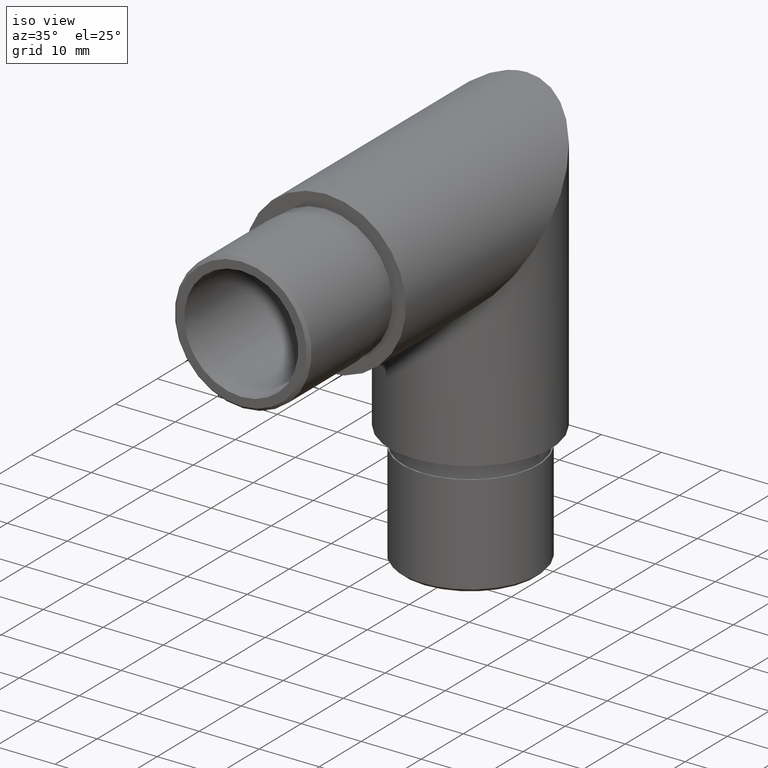
[diagram: clean part render]
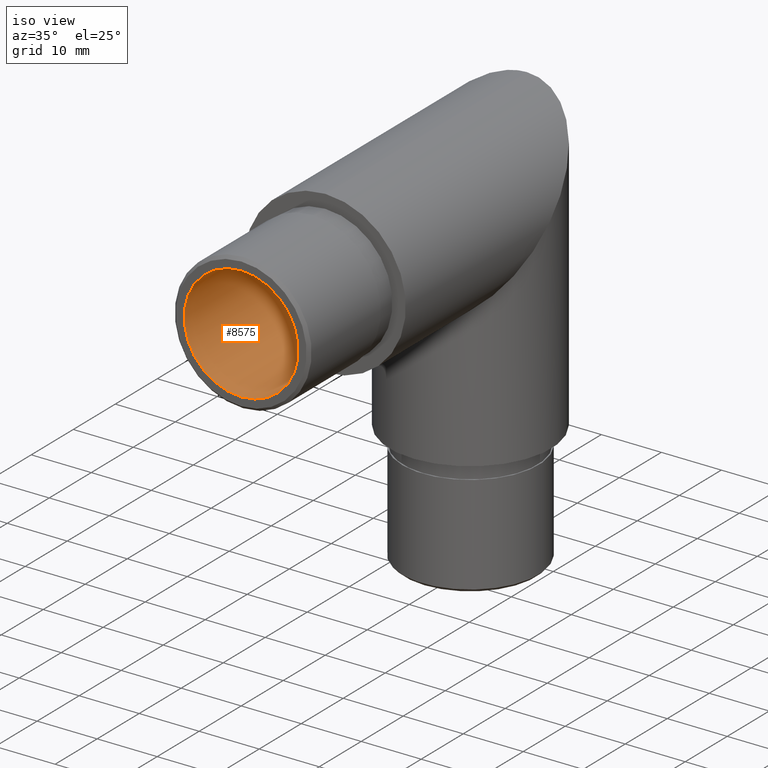
[diagram: same view with one face highlighted and labeled with its STEP entity id]
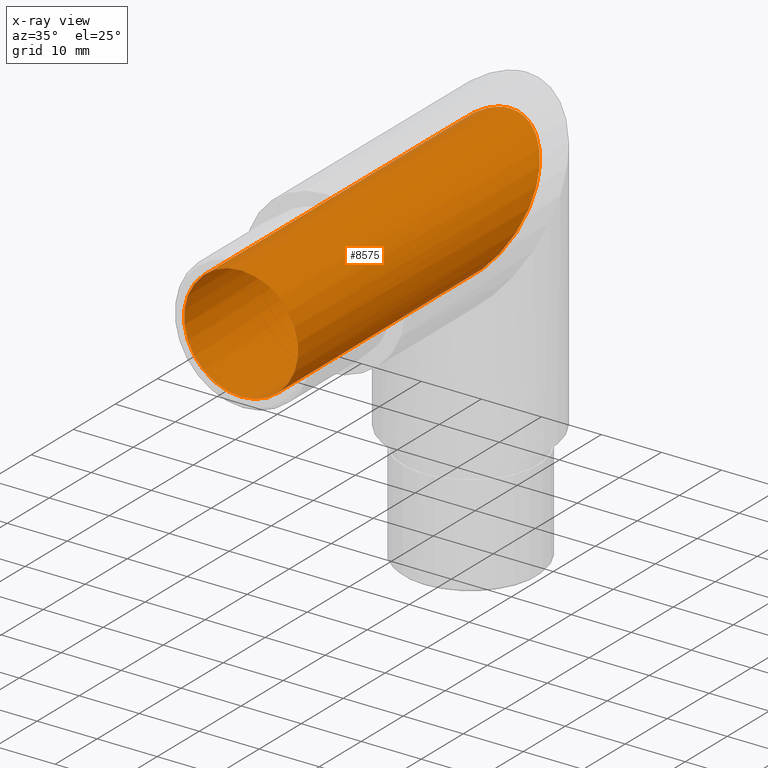
[diagram: x-ray of the same camera — body ghosted, the highlighted face saturated]
A machine part, iso view. The second image highlights one B-rep face of the part: STEP entity #8575.
The next image is the same camera in x-ray: the body ghosted, the highlighted face saturated — about 1% of this face is hidden behind the body in this view.
In plain terms, the highlighted cylindrical surface (bore or boss wall) has radius 9.5 mm, axis along (-0, -1, -0).
Its self-contained STEP definition (entity closure, byte-faithful):
#150 = CIRCLE ( 'NONE', #7081, 9.500000000000001800 ) ;
#356 = ORIENTED_EDGE ( 'NONE', *, *, #2575, .T. ) ;
#779 = EDGE_LOOP ( 'NONE', ( #356 ) ) ;
#1192 = CARTESIAN_POINT ( 'NONE',  ( 0.0000000000000000000, 72.59234482783624300, 0.0000000000000000000 ) ) ;
#2121 = DIRECTION ( 'NONE',  ( 0.0000000000000000000, 0.0000000000000000000, -1.000000000000000000 ) ) ;
#2449 = CYLINDRICAL_SURFACE ( 'NONE', #8530, 9.500000000000000000 ) ;
#2575 = EDGE_CURVE ( 'NONE', #8780, #8780, #150, .T. ) ;
#2926 = DIRECTION ( 'NONE',  ( -0.0000000000000000000, -1.000000000000000000, -0.0000000000000000000 ) ) ;
#2972 = EDGE_LOOP ( 'NONE', ( #10189 ) ) ;
#3138 = FACE_OUTER_BOUND ( 'NONE', #779, .T. ) ;
#3331 = CARTESIAN_POINT ( 'NONE',  ( -18.99999999999999300, 25.04999999999996500, -9.500000000000000000 ) ) ;
#4205 = CARTESIAN_POINT ( 'NONE',  ( -1.163414459189985500E-015, 44.05000000000003300, 9.500000000000000000 ) ) ;
#4385 =( BOUNDED_CURVE ( )  B_SPLINE_CURVE ( 3, ( #5895, #3331, #9236, #4205, #9164, #9313, #5062 ),
 .UNSPECIFIED., .T., .T. ) 
 B_SPLINE_CURVE_WITH_KNOTS ( ( 4, 3, 4 ),
 ( 0.0000000000000000000, 3.141592653589793100, 6.283185307179586200 ),
 .UNSPECIFIED. ) 
 CURVE ( )  GEOMETRIC_REPRESENTATION_ITEM ( )  RATIONAL_B_SPLINE_CURVE ( ( 1.000000000000000000, 0.3333333333333333700, 0.3333333333333333700, 1.000000000000000000, 0.3333333333333333700, 0.3333333333333333700, 1.000000000000000000 ) ) 
 REPRESENTATION_ITEM ( '' )  );
#5062 = CARTESIAN_POINT ( 'NONE',  ( 0.0000000000000000000, 25.04999999999996200, -9.500000000000000000 ) ) ;
#5895 = CARTESIAN_POINT ( 'NONE',  ( 0.0000000000000000000, 25.04999999999996200, -9.500000000000000000 ) ) ;
#6717 = FACE_OUTER_BOUND ( 'NONE', #2972, .T. ) ;
#7081 = AXIS2_PLACEMENT_3D ( 'NONE', #8186, #9034, #9852 ) ;
#7221 = CARTESIAN_POINT ( 'NONE',  ( 0.0000000000000000000, 25.04999999999996200, -9.500000000000000000 ) ) ;
#8136 = EDGE_CURVE ( 'NONE', #8522, #8522, #4385, .T. ) ;
#8186 = CARTESIAN_POINT ( 'NONE',  ( 0.0000000000000000000, -20.00000000000000000, 0.0000000000000000000 ) ) ;
#8522 = VERTEX_POINT ( 'NONE', #7221 ) ;
#8530 = AXIS2_PLACEMENT_3D ( 'NONE', #1192, #2926, #2121 ) ;
#8575 = ADVANCED_FACE ( 'NONE', ( #6717, #3138 ), #2449, .F. ) ;
#8780 = VERTEX_POINT ( 'NONE', #10578 ) ;
#9034 = DIRECTION ( 'NONE',  ( 0.0000000000000000000, -1.000000000000000000, 0.0000000000000000000 ) ) ;
#9164 = CARTESIAN_POINT ( 'NONE',  ( 18.99999999999999300, 44.05000000000003300, 9.500000000000001800 ) ) ;
#9236 = CARTESIAN_POINT ( 'NONE',  ( -18.99999999999999300, 44.05000000000003300, 9.499999999999996400 ) ) ;
#9313 = CARTESIAN_POINT ( 'NONE',  ( 18.99999999999999300, 25.04999999999996500, -9.500000000000000000 ) ) ;
#9852 = DIRECTION ( 'NONE',  ( 0.0000000000000000000, 0.0000000000000000000, -1.000000000000000000 ) ) ;
#10189 = ORIENTED_EDGE ( 'NONE', *, *, #8136, .T. ) ;
#10578 = CARTESIAN_POINT ( 'NONE',  ( 0.0000000000000000000, -20.00000000000000000, -9.500000000000001800 ) ) ;